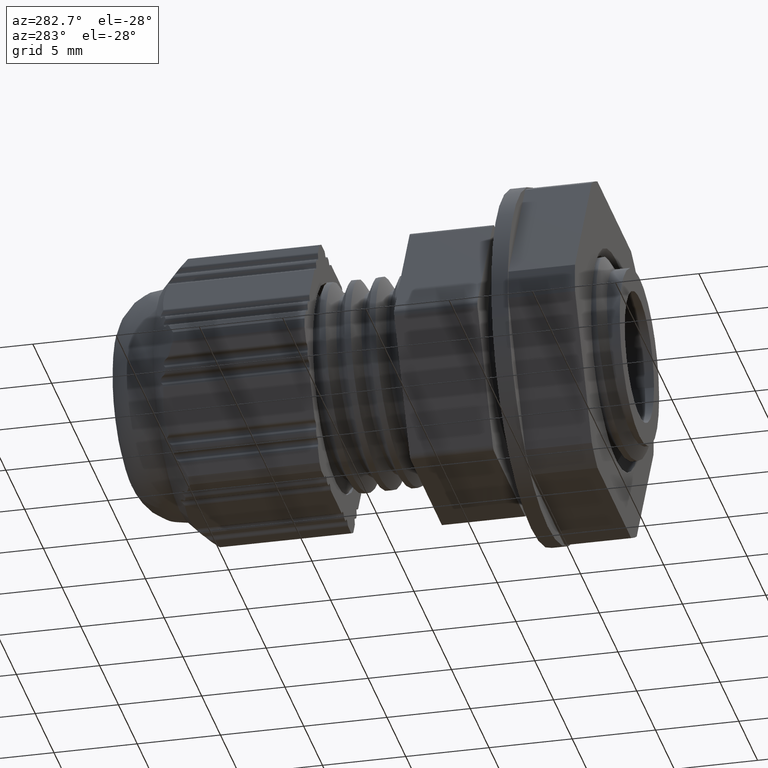
[diagram: clean part render]
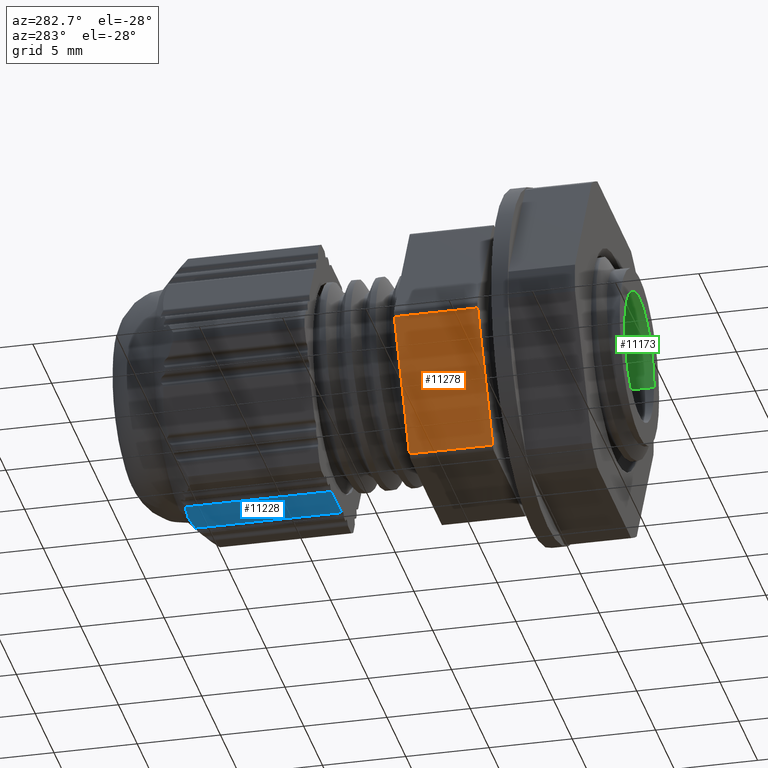
[diagram: same view with three faces highlighted in distinct colors, each labeled with its STEP entity id]
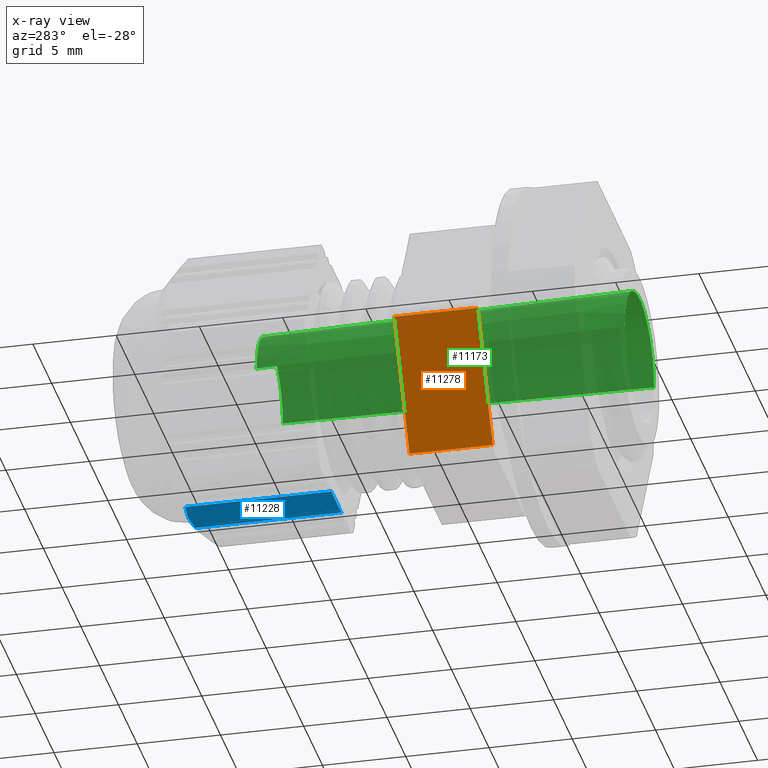
[diagram: x-ray of the same camera — body ghosted, the three highlighted faces saturated]
A machine part, auxiliary view with three faces highlighted in distinct colors.
The next image is the same camera in x-ray (body ghosted, the three faces saturated) — at least one of them is partly hidden behind the body in this view.
Their STEP definitions:

[orange] entity #11278 — the highlighted planar face has unit normal (0.866, -0, 0.5).
#253 = VECTOR ( 'NONE', #8805, 1000.000000000000000 ) ;
#282 = VECTOR ( 'NONE', #8378, 1000.000000000000000 ) ;
#328 = AXIS2_PLACEMENT_3D ( 'NONE', #8871, #8826, #8849 ) ;
#361 = VECTOR ( 'NONE', #8852, 1000.000000000000000 ) ;
#4642 = LINE ( 'NONE', #4643, #14195 ) ;
#4643 = CARTESIAN_POINT ( 'NONE',  ( -8.660254037844390900, -6.866593736519716300, -4.462418573949797700E-018 ) ) ;
#4644 = DIRECTION ( 'NONE',  ( 0.5000000000000004400, 0.0000000000000000000, -0.8660254037844383700 ) ) ;
#8378 = DIRECTION ( 'NONE',  ( 0.0000000000000000000, 1.000000000000000000, 0.0000000000000000000 ) ) ;
#8382 = CARTESIAN_POINT ( 'NONE',  ( -4.474464586219597500, -6.966593736519716800, -7.250000000000001800 ) ) ;
#8409 = LINE ( 'NONE', #8382, #282 ) ;
#8789 = LINE ( 'NONE', #8790, #253 ) ;
#8790 = CARTESIAN_POINT ( 'NONE',  ( -8.515916470546983400, -6.966593736519716800, -0.2500000000000003900 ) ) ;
#8805 = DIRECTION ( 'NONE',  ( -0.0000000000000000000, -1.000000000000000000, -0.0000000000000000000 ) ) ;
#8826 = DIRECTION ( 'NONE',  ( 0.8660254037844383700, -0.0000000000000000000, 0.5000000000000004400 ) ) ;
#8849 = DIRECTION ( 'NONE',  ( 0.5000000000000004400, 0.0000000000000000000, -0.8660254037844383700 ) ) ;
#8851 = CARTESIAN_POINT ( 'NONE',  ( -4.330127018922184800, -1.866593736519716300, -7.500000000000008900 ) ) ;
#8852 = DIRECTION ( 'NONE',  ( -0.5000000000000004400, 0.0000000000000000000, 0.8660254037844383700 ) ) ;
#8858 = FACE_OUTER_BOUND ( 'NONE', #12966, .T. ) ;
#8864 = PLANE ( 'NONE',  #328 ) ;
#8866 = LINE ( 'NONE', #8851, #361 ) ;
#8871 = CARTESIAN_POINT ( 'NONE',  ( -8.660254037844390900, -6.966593736519716800, -4.462418573949797700E-018 ) ) ;
#10105 = CARTESIAN_POINT ( 'NONE',  ( -8.515916470546983400, -1.866593736519716500, -0.2500000000000003900 ) ) ;
#10122 = CARTESIAN_POINT ( 'NONE',  ( -4.474464586219597500, -6.866593736519716300, -7.250000000000001800 ) ) ;
#10126 = CARTESIAN_POINT ( 'NONE',  ( -4.474464586219597500, -1.866593736519716500, -7.250000000000001800 ) ) ;
#10142 = CARTESIAN_POINT ( 'NONE',  ( -8.515916470546983400, -6.866593736519716300, -0.2500000000000003900 ) ) ;
#10979 = EDGE_CURVE ( 'NONE', #12649, #12669, #4642, .T. ) ;
#11243 = EDGE_CURVE ( 'NONE', #12669, #12668, #8409, .T. ) ;
#11266 = EDGE_CURVE ( 'NONE', #12611, #12649, #8789, .T. ) ;
#11278 = ADVANCED_FACE ( 'NONE', ( #8858 ), #8864, .F. ) ;
#11282 = EDGE_CURVE ( 'NONE', #12668, #12611, #8866, .T. ) ;
#12151 = ORIENTED_EDGE ( 'NONE', *, *, #11282, .F. ) ;
#12164 = ORIENTED_EDGE ( 'NONE', *, *, #11243, .F. ) ;
#12186 = ORIENTED_EDGE ( 'NONE', *, *, #10979, .F. ) ;
#12209 = ORIENTED_EDGE ( 'NONE', *, *, #11266, .F. ) ;
#12611 = VERTEX_POINT ( 'NONE', #10105 ) ;
#12649 = VERTEX_POINT ( 'NONE', #10142 ) ;
#12668 = VERTEX_POINT ( 'NONE', #10126 ) ;
#12669 = VERTEX_POINT ( 'NONE', #10122 ) ;
#12966 = EDGE_LOOP ( 'NONE', ( #12151, #12164, #12186, #12209 ) ) ;
#14195 = VECTOR ( 'NONE', #4644, 1000.000000000000000 ) ;

[blue] entity #11228 — the highlighted planar face has unit normal (0, 0, -1).
#296 = AXIS2_PLACEMENT_3D ( 'NONE', #7992, #7953, #7949 ) ;
#922 = B_SPLINE_CURVE_WITH_KNOTS ( 'NONE', 3,
 ( #4899, #4919, #4935, #4915 ),
 .UNSPECIFIED., .F., .F.,
 ( 4, 4 ),
 ( 5.294859796737922100E-017, 0.001353054840354031000 ),
 .UNSPECIFIED. ) ;
#2498 = CARTESIAN_POINT ( 'NONE',  ( 1.020425574104307700E-016, 12.43340626348030200, -7.500000000000000000 ) ) ;
#2531 = CARTESIAN_POINT ( 'NONE',  ( 0.4528063616316301300, 12.43340626348030200, -7.500000000000000000 ) ) ;
#2558 = CARTESIAN_POINT ( 'NONE',  ( 1.347711778611767200, 12.31327981845272200, -7.499999999999950300 ) ) ;
#2577 = CARTESIAN_POINT ( 'NONE',  ( 0.9019328383423688100, 12.39212123044136000, -7.500000000000000000 ) ) ;
#3299 = B_SPLINE_CURVE_WITH_KNOTS ( 'NONE', 3,
 ( #2498, #2531, #2577, #2558 ),
 .UNSPECIFIED., .F., .F.,
 ( 4, 4 ),
 ( 0.001353054840354031000, 0.002706109680707460800 ),
 .UNSPECIFIED. ) ;
#4108 = LINE ( 'NONE', #4112, #14129 ) ;
#4112 = CARTESIAN_POINT ( 'NONE',  ( 4.330127018921999100, 3.533406263480283600, -7.500000000000000000 ) ) ;
#4113 = DIRECTION ( 'NONE',  ( -1.000000000000000000, 0.0000000000000000000, -0.0000000000000000000 ) ) ;
#4899 = CARTESIAN_POINT ( 'NONE',  ( -1.347711778612428200, 12.31327981845282300, -7.499999999999729100 ) ) ;
#4915 = CARTESIAN_POINT ( 'NONE',  ( 1.020425574104307700E-016, 12.43340626348030200, -7.500000000000000000 ) ) ;
#4919 = CARTESIAN_POINT ( 'NONE',  ( -0.9019328383427878100, 12.39212123044131900, -7.500000000000000000 ) ) ;
#4935 = CARTESIAN_POINT ( 'NONE',  ( -0.4528063616318143100, 12.43340626348030200, -7.500000000000000000 ) ) ;
#4957 = LINE ( 'NONE', #4988, #14239 ) ;
#4970 = DIRECTION ( 'NONE',  ( -0.0000000000000000000, -1.000000000000000000, -0.0000000000000000000 ) ) ;
#4988 = CARTESIAN_POINT ( 'NONE',  ( 1.347711778611756300, -14.46659373651972100, -7.500000000000000000 ) ) ;
#5058 = CARTESIAN_POINT ( 'NONE',  ( -1.347711778612412200, -14.46659373651972100, -7.500000000000000000 ) ) ;
#5078 = LINE ( 'NONE', #5058, #14245 ) ;
#5087 = DIRECTION ( 'NONE',  ( 0.0000000000000000000, 1.000000000000000000, 0.0000000000000000000 ) ) ;
#7944 = PLANE ( 'NONE',  #296 ) ;
#7949 = DIRECTION ( 'NONE',  ( -1.000000000000000000, 0.0000000000000000000, -0.0000000000000000000 ) ) ;
#7953 = DIRECTION ( 'NONE',  ( 0.0000000000000000000, 0.0000000000000000000, -1.000000000000000000 ) ) ;
#7962 = FACE_OUTER_BOUND ( 'NONE', #12996, .T. ) ;
#7992 = CARTESIAN_POINT ( 'NONE',  ( 4.330127018921999100, -14.46659373651972100, -7.500000000000000000 ) ) ;
#9895 = CARTESIAN_POINT ( 'NONE',  ( 1.347711778611767200, 12.31327981845272200, -7.499999999999950300 ) ) ;
#9919 = CARTESIAN_POINT ( 'NONE',  ( 1.020425574104307700E-016, 12.43340626348030200, -7.500000000000000000 ) ) ;
#10108 = CARTESIAN_POINT ( 'NONE',  ( -1.347711778612394700, 3.533406263480283600, -7.500000000000000000 ) ) ;
#10129 = CARTESIAN_POINT ( 'NONE',  ( -1.347711778612428200, 12.31327981845282300, -7.499999999999729100 ) ) ;
#10135 = CARTESIAN_POINT ( 'NONE',  ( 1.347711778611759800, 3.533406263480283600, -7.500000000000000000 ) ) ;
#10636 = EDGE_CURVE ( 'NONE', #12461, #12421, #3299, .T. ) ;
#10908 = EDGE_CURVE ( 'NONE', #12694, #12674, #4108, .T. ) ;
#11015 = EDGE_CURVE ( 'NONE', #12681, #12461, #922, .T. ) ;
#11031 = EDGE_CURVE ( 'NONE', #12421, #12694, #4957, .T. ) ;
#11035 = EDGE_CURVE ( 'NONE', #12674, #12681, #5078, .T. ) ;
#11228 = ADVANCED_FACE ( 'NONE', ( #7962 ), #7944, .T. ) ;
#12421 = VERTEX_POINT ( 'NONE', #9895 ) ;
#12461 = VERTEX_POINT ( 'NONE', #9919 ) ;
#12674 = VERTEX_POINT ( 'NONE', #10108 ) ;
#12681 = VERTEX_POINT ( 'NONE', #10129 ) ;
#12694 = VERTEX_POINT ( 'NONE', #10135 ) ;
#12996 = EDGE_LOOP ( 'NONE', ( #14715, #13721, #14692, #13704, #14714 ) ) ;
#13704 = ORIENTED_EDGE ( 'NONE', *, *, #10908, .T. ) ;
#13721 = ORIENTED_EDGE ( 'NONE', *, *, #10636, .T. ) ;
#14129 = VECTOR ( 'NONE', #4113, 1000.000000000000000 ) ;
#14239 = VECTOR ( 'NONE', #4970, 1000.000000000000000 ) ;
#14245 = VECTOR ( 'NONE', #5087, 1000.000000000000000 ) ;
#14692 = ORIENTED_EDGE ( 'NONE', *, *, #11031, .T. ) ;
#14714 = ORIENTED_EDGE ( 'NONE', *, *, #11035, .T. ) ;
#14715 = ORIENTED_EDGE ( 'NONE', *, *, #11015, .T. ) ;

[green] entity #11173 — the highlighted conical surface has half-angle 1 deg.
#718 = AXIS2_PLACEMENT_3D ( 'NONE', #6293, #6297, #6305 ) ;
#722 = CONICAL_SURFACE ( 'NONE', #718, 3.899999999999792500, 0.01745329251996291200 ) ;
#2826 = CARTESIAN_POINT ( 'NONE',  ( -3.899999999999792500, -14.66659373647871700, 4.776122516674423900E-016 ) ) ;
#2840 = DIRECTION ( 'NONE',  ( -0.01745240643730290900, -0.9998476951563909400, 2.137303368086194100E-018 ) ) ;
#2857 = LINE ( 'NONE', #2826, #13915 ) ;
#2882 = CARTESIAN_POINT ( 'NONE',  ( 3.899999999999792500, -14.66659373647871700, 0.0000000000000000000 ) ) ;
#2891 = LINE ( 'NONE', #2882, #13940 ) ;
#2893 = DIRECTION ( 'NONE',  ( 0.01745240643730335000, -0.9998476951563908300, 0.0000000000000000000 ) ) ;
#3802 = DIRECTION ( 'NONE',  ( 1.000000000000000000, 2.469362847416657100E-016, 0.0000000000000000000 ) ) ;
#3804 = CARTESIAN_POINT ( 'NONE',  ( -4.937360029472891200E-015, 7.533721623985911700, 0.0000000000000000000 ) ) ;
#3806 = DIRECTION ( 'NONE',  ( 2.224004456380640200E-016, -1.000000000000000000, 0.0000000000000000000 ) ) ;
#4119 = DIRECTION ( 'NONE',  ( 1.000000000000000000, 4.448008912760149400E-016, 0.0000000000000000000 ) ) ;
#4166 = DIRECTION ( 'NONE',  ( -2.224004456380640200E-016, 1.000000000000000000, -0.0000000000000000000 ) ) ;
#4171 = CARTESIAN_POINT ( 'NONE',  ( 1.264200168623483600E-026, -14.66659373653556000, 0.0000000000000000000 ) ) ;
#6293 = CARTESIAN_POINT ( 'NONE',  ( 0.0000000000000000000, -14.66659373647871700, 0.0000000000000000000 ) ) ;
#6297 = DIRECTION ( 'NONE',  ( 2.224004456380640200E-016, -1.000000000000000000, 0.0000000000000000000 ) ) ;
#6305 = DIRECTION ( 'NONE',  ( 1.000000000000000000, 0.0000000000000000000, 0.0000000000000000000 ) ) ;
#6320 = FACE_OUTER_BOUND ( 'NONE', #13079, .T. ) ;
#10238 = CARTESIAN_POINT ( 'NONE',  ( -3.512492053955545300, 7.533721623985910800, 4.538842333791401400E-016 ) ) ;
#10242 = CARTESIAN_POINT ( 'NONE',  ( 3.900000000000784600, -14.66659373653556000, 0.0000000000000000000 ) ) ;
#10260 = CARTESIAN_POINT ( 'NONE',  ( -3.900000000000784600, -14.66659373653556000, 4.776122516675638700E-016 ) ) ;
#10295 = CARTESIAN_POINT ( 'NONE',  ( 3.512492053955535500, 7.533721623985912600, 0.0000000000000000000 ) ) ;
#10711 = EDGE_CURVE ( 'NONE', #13131, #13090, #2857, .T. ) ;
#10722 = EDGE_CURVE ( 'NONE', #13117, #13141, #2891, .T. ) ;
#10866 = EDGE_CURVE ( 'NONE', #13117, #13131, #14072, .T. ) ;
#10913 = EDGE_CURVE ( 'NONE', #13090, #13141, #14107, .T. ) ;
#11173 = ADVANCED_FACE ( 'NONE', ( #6320 ), #722, .F. ) ;
#12308 = ORIENTED_EDGE ( 'NONE', *, *, #10866, .F. ) ;
#12311 = ORIENTED_EDGE ( 'NONE', *, *, #10722, .T. ) ;
#12402 = ORIENTED_EDGE ( 'NONE', *, *, #10711, .F. ) ;
#12413 = ORIENTED_EDGE ( 'NONE', *, *, #10913, .F. ) ;
#13079 = EDGE_LOOP ( 'NONE', ( #12402, #12308, #12311, #12413 ) ) ;
#13090 = VERTEX_POINT ( 'NONE', #10260 ) ;
#13117 = VERTEX_POINT ( 'NONE', #10295 ) ;
#13131 = VERTEX_POINT ( 'NONE', #10238 ) ;
#13141 = VERTEX_POINT ( 'NONE', #10242 ) ;
#13915 = VECTOR ( 'NONE', #2840, 1000.000000000000000 ) ;
#13940 = VECTOR ( 'NONE', #2893, 1000.000000000000100 ) ;
#14031 = AXIS2_PLACEMENT_3D ( 'NONE', #3804, #3806, #3802 ) ;
#14072 = CIRCLE ( 'NONE', #14031, 3.512492053955540400 ) ;
#14107 = CIRCLE ( 'NONE', #14127, 3.900000000000784600 ) ;
#14127 = AXIS2_PLACEMENT_3D ( 'NONE', #4171, #4166, #4119 ) ;